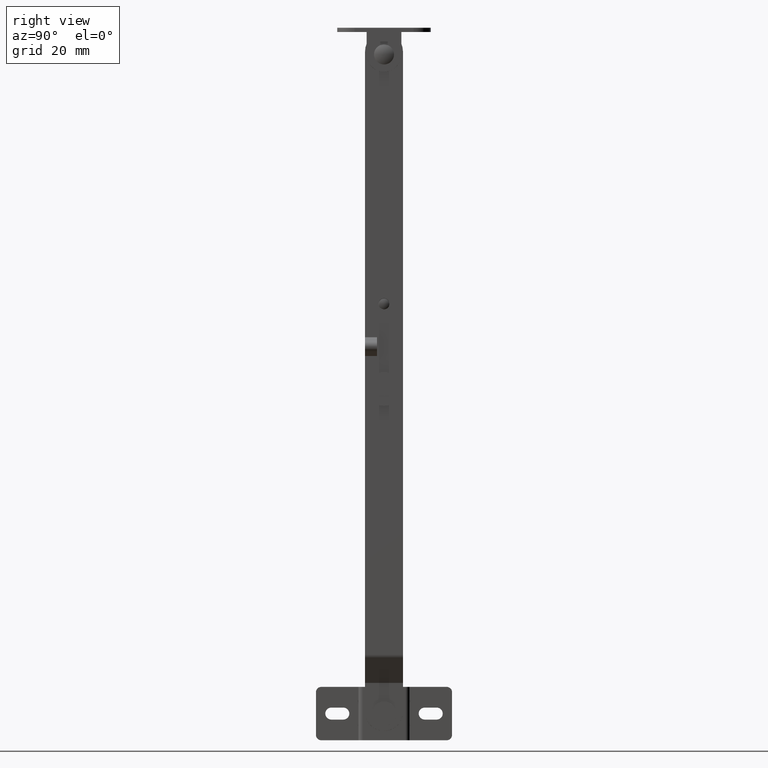
[diagram: clean part render]
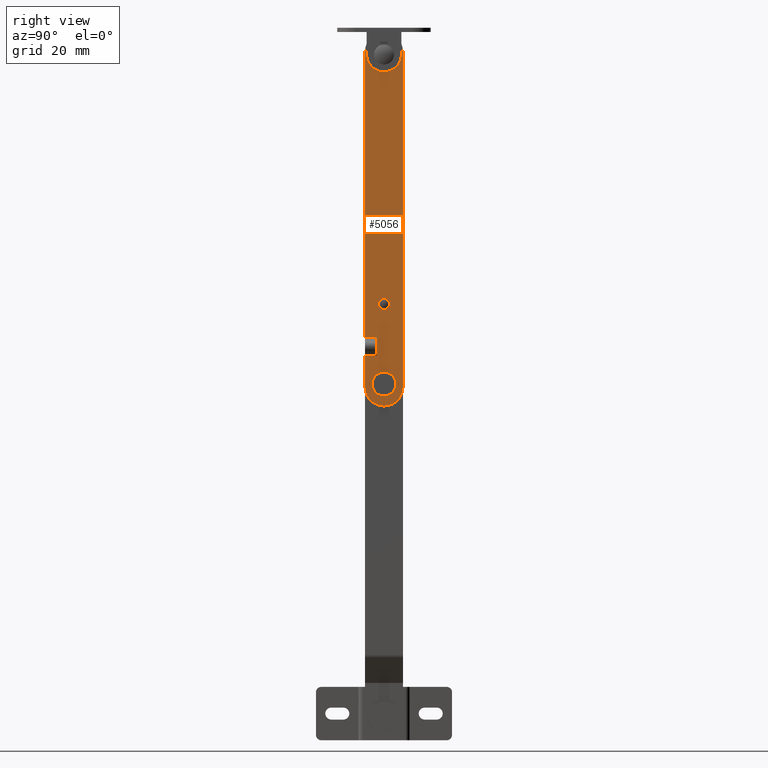
[diagram: same view with one face highlighted and labeled with its STEP entity id]
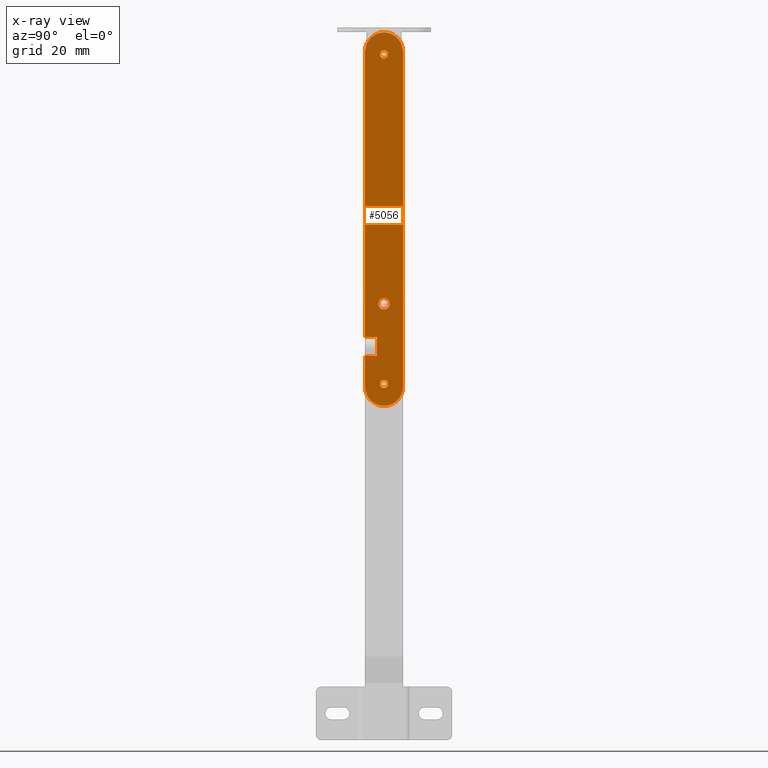
[diagram: x-ray of the same camera — body ghosted, the highlighted face saturated]
A machine part, right view. The second image highlights one B-rep face of the part: STEP entity #5056.
The next image is the same camera in x-ray: the body ghosted, the highlighted face saturated — about 0% of this face is hidden behind the body in this view.
In plain terms, the highlighted face is a freeform B-spline surface patch.
Its self-contained STEP definition (entity closure, byte-faithful):
#3879=CARTESIAN_POINT('',(20.300025000000051,2.353318E-011,32.099999999999987));
#3880=VERTEX_POINT('',#3879);
#3881=CARTESIAN_POINT('',(20.300024999891740,-1.504966217420980,31.464605454546032));
#3882=VERTEX_POINT('',#3881);
#3883=CARTESIAN_POINT('',(20.300025000000051,2.353318E-011,32.099999999999987));
#3884=CARTESIAN_POINT('',(20.300024999978731,-0.297165776085491,32.100402901504012));
#3885=CARTESIAN_POINT('',(20.300024999938330,-0.856104044079448,31.979180302453528));
#3886=CARTESIAN_POINT('',(20.300024999904942,-1.322236430678520,31.652658028357639));
#3887=CARTESIAN_POINT('',(20.300024999891740,-1.504966217420980,31.464605454546032));
#3888=B_SPLINE_CURVE_WITH_KNOTS('',3,(#3883,#3884,#3885,#3886,#3887),.UNSPECIFIED.,.F.,.U.,(4,1,4),(0.000000161100753,0.891350015161177,1.677919271041949),.UNSPECIFIED.);
#3889=EDGE_CURVE('',#3880,#3882,#3888,.T.);
#3944=CARTESIAN_POINT('',(20.300025000177811,-1.548283789449739,28.581259421821930));
#3945=VERTEX_POINT('',#3944);
#3951=CARTESIAN_POINT('',(20.300025000000051,2.353318E-011,27.899999999999999));
#3952=VERTEX_POINT('',#3951);
#3953=CARTESIAN_POINT('',(20.300025000177811,-1.548283789449739,28.581259421821930));
#3954=CARTESIAN_POINT('',(20.300025000153930,-1.340310937171123,28.353591132473088));
#3955=CARTESIAN_POINT('',(20.300025000097939,-0.852158668065824,28.014410925078781));
#3956=CARTESIAN_POINT('',(20.300025000031269,-0.272079412196803,27.899745769623401));
#3957=CARTESIAN_POINT('',(20.300025000000051,2.353318E-011,27.899999999999999));
#3958=B_SPLINE_CURVE_WITH_KNOTS('',3,(#3953,#3954,#3955,#3956,#3957),.UNSPECIFIED.,.F.,.U.,(4,1,4),(0.000000193664674,0.924864662773308,1.741015437898837),.UNSPECIFIED.);
#3959=EDGE_CURVE('',#3945,#3952,#3958,.T.);
#3961=CARTESIAN_POINT('',(20.300025000000051,2.100000000011224,30.000007190142139));
#3962=VERTEX_POINT('',#3961);
#3963=CARTESIAN_POINT('',(20.300025000000051,2.353318E-011,27.899999999999999));
#3964=CARTESIAN_POINT('',(20.300025000000051,0.360980295329783,27.899208125802410));
#3965=CARTESIAN_POINT('',(20.300025000000090,0.927011506659751,28.049731361668439));
#3966=CARTESIAN_POINT('',(20.300024999999980,1.474529916509753,28.477497433547558));
#3967=CARTESIAN_POINT('',(20.300025000000101,1.797811993652306,28.881350211766321));
#3968=CARTESIAN_POINT('',(20.300025000000101,2.033589204767956,29.364375681664828));
#3969=CARTESIAN_POINT('',(20.300025000000179,2.100124947771485,29.776646203667180));
#3970=CARTESIAN_POINT('',(20.300025000000051,2.100000000011224,30.000007190142139));
#3971=B_SPLINE_CURVE_WITH_KNOTS('',3,(#3963,#3964,#3965,#3966,#3967,#3968,#3969,#3970),.UNSPECIFIED.,.F.,.U.,(4,1,1,1,1,4),(0.000000659755424,1.082423134495415,1.700823224128252,2.061679648452581,2.628705970534092,3.298759115814546),.UNSPECIFIED.);
#3972=EDGE_CURVE('',#3952,#3962,#3971,.T.);
#3974=CARTESIAN_POINT('',(20.300025000000051,2.100000000011224,30.000007190142139));
#3975=CARTESIAN_POINT('',(20.300025000000009,2.100401341967307,30.292166228100381));
#3976=CARTESIAN_POINT('',(20.300025000000151,2.012530415936131,30.704159471263360));
#3977=CARTESIAN_POINT('',(20.300024999999959,1.713138740352597,31.248002677381201));
#3978=CARTESIAN_POINT('',(20.300025000000169,1.316744935064824,31.685733563740630));
#3979=CARTESIAN_POINT('',(20.300025000000030,0.704396946099515,32.022629308128707));
#3980=CARTESIAN_POINT('',(20.300025000000080,0.223348172160021,32.100091444917211));
#3981=CARTESIAN_POINT('',(20.300025000000051,2.353318E-011,32.099999999999987));
#3982=B_SPLINE_CURVE_WITH_KNOTS('',3,(#3974,#3975,#3976,#3977,#3978,#3979,#3980,#3981),.UNSPECIFIED.,.F.,.U.,(4,1,1,1,1,4),(0.000000669547682,0.876232426485192,1.237077105182174,1.855504484027237,2.628699516542808,3.298751010646302),.UNSPECIFIED.);
#3983=EDGE_CURVE('',#3962,#3880,#3982,.T.);
#4002=CARTESIAN_POINT('',(20.300025000000051,-2.099999999964158,29.999992809857861));
#4003=VERTEX_POINT('',#4002);
#4004=CARTESIAN_POINT('',(20.300024999891740,-1.504966217420980,31.464605454546032));
#4005=CARTESIAN_POINT('',(20.300024999909638,-1.741106230612482,31.223013256624331));
#4006=CARTESIAN_POINT('',(20.300024999945080,-2.021303202614474,30.742879627701331));
#4007=CARTESIAN_POINT('',(20.300024999985059,-2.100054966610337,30.202595145078590));
#4008=CARTESIAN_POINT('',(20.300025000000051,-2.099999999964158,29.999992809857861));
#4009=B_SPLINE_CURVE_WITH_KNOTS('',3,(#4004,#4005,#4006,#4007,#4008),.UNSPECIFIED.,.F.,.U.,(4,1,4),(0.000000135716862,1.013009554103204,1.620841645003449),.UNSPECIFIED.);
#4010=EDGE_CURVE('',#3882,#4003,#4009,.T.);
#4012=CARTESIAN_POINT('',(20.300025000000051,-2.099999999964158,29.999992809857861));
#4013=CARTESIAN_POINT('',(20.300025000036669,-2.100401378569969,29.707843577971389));
#4014=CARTESIAN_POINT('',(20.300025000101641,-1.989744052569221,29.189020027666491));
#4015=CARTESIAN_POINT('',(20.300025000156850,-1.701866597917696,28.748655293717931));
#4016=CARTESIAN_POINT('',(20.300025000177811,-1.548283789449739,28.581259421821930));
#4017=B_SPLINE_CURVE_WITH_KNOTS('',3,(#4012,#4013,#4014,#4015,#4016),.UNSPECIFIED.,.F.,.U.,(4,1,4),(0.000000134614043,0.876283968312938,1.557839108126244),.UNSPECIFIED.);
#4018=EDGE_CURVE('',#4003,#3945,#4017,.T.);
#4069=CARTESIAN_POINT('',(20.300025000001579,-0.968612595259130,124.645333888293610));
#4070=VERTEX_POINT('',#4069);
#4071=CARTESIAN_POINT('',(20.300025000000051,-1.499999999999798,123.500000101906710));
#4072=VERTEX_POINT('',#4071);
#4073=CARTESIAN_POINT('',(20.300025000001579,-0.968612595259130,124.645333888293610));
#4074=CARTESIAN_POINT('',(20.300025000001369,-1.155619863982478,124.487877479565700));
#4075=CARTESIAN_POINT('',(20.300025000000900,-1.416298998290240,124.124342677004610));
#4076=CARTESIAN_POINT('',(20.300025000000300,-1.500174590470585,123.690074568550000));
#4077=CARTESIAN_POINT('',(20.300025000000051,-1.499999999999798,123.500000101906710));
#4078=B_SPLINE_CURVE_WITH_KNOTS('',3,(#4073,#4074,#4075,#4076,#4077),.UNSPECIFIED.,.F.,.U.,(4,1,4),(0.000000213400212,0.733140783626724,1.303362873469221),.UNSPECIFIED.);
#4079=EDGE_CURVE('',#4070,#4072,#4078,.T.);
#4081=CARTESIAN_POINT('',(20.300025000000051,1.989520E-013,122.0));
#4082=VERTEX_POINT('',#4081);
#4083=CARTESIAN_POINT('',(20.300025000000051,-1.499999999999798,123.500000101906710));
#4084=CARTESIAN_POINT('',(20.300025000000058,-1.500194932848977,123.303624767401100));
#4085=CARTESIAN_POINT('',(20.300025000000041,-1.421811718707333,122.911051439891690));
#4086=CARTESIAN_POINT('',(20.300025000000069,-1.116108611040016,122.453367514733900));
#4087=CARTESIAN_POINT('',(20.300025000000058,-0.637644476773810,122.098671855124910));
#4088=CARTESIAN_POINT('',(20.300025000000009,-0.245579988326851,121.999488367523200));
#4089=CARTESIAN_POINT('',(20.300025000000051,1.989520E-013,122.0));
#4090=B_SPLINE_CURVE_WITH_KNOTS('',3,(#4083,#4084,#4085,#4086,#4087,#4088,#4089),.UNSPECIFIED.,.F.,.U.,(4,1,1,1,4),(0.000000459267700,0.589113397398850,1.178215958646211,1.620021368977781,2.356430882423099),.UNSPECIFIED.);
#4091=EDGE_CURVE('',#4072,#4082,#4090,.T.);
#4093=CARTESIAN_POINT('',(20.300025000000041,1.500000000000196,123.499999898093290));
#4094=VERTEX_POINT('',#4093);
#4095=CARTESIAN_POINT('',(20.300025000000051,1.989520E-013,122.0));
#4096=CARTESIAN_POINT('',(20.300025000000069,0.294825149938416,121.998914430663210));
#4097=CARTESIAN_POINT('',(20.300025000000051,0.784253534821856,122.149444950840010));
#4098=CARTESIAN_POINT('',(20.300025000000041,1.350600557010094,122.715664224123200));
#4099=CARTESIAN_POINT('',(20.300025000000069,1.501061369419570,123.205203205356800));
#4100=CARTESIAN_POINT('',(20.300025000000041,1.500000000000196,123.499999898093290));
#4101=B_SPLINE_CURVE_WITH_KNOTS('',3,(#4095,#4096,#4097,#4098,#4099,#4100),.UNSPECIFIED.,.F.,.U.,(4,1,1,4),(0.000000459809881,0.883685154666188,1.472732995613560,2.356430767539218),.UNSPECIFIED.);
#4102=EDGE_CURVE('',#4082,#4094,#4101,.T.);
#4104=CARTESIAN_POINT('',(20.300024999997600,1.088061623587512,124.532531755904500));
#4105=VERTEX_POINT('',#4104);
#4106=CARTESIAN_POINT('',(20.300025000000041,1.500000000000196,123.499999898093290));
#4107=CARTESIAN_POINT('',(20.300024999999650,1.500095944010185,123.666090243991500));
#4108=CARTESIAN_POINT('',(20.300024999998769,1.436293681901936,124.045645885164010));
#4109=CARTESIAN_POINT('',(20.300024999997969,1.235309787542793,124.377817714070600));
#4110=CARTESIAN_POINT('',(20.300024999997600,1.088061623587512,124.532531755904500));
#4111=B_SPLINE_CURVE_WITH_KNOTS('',3,(#4106,#4107,#4108,#4109,#4110),.UNSPECIFIED.,.F.,.U.,(4,1,4),(0.000000215310086,0.498302147059430,1.138934044232477),.UNSPECIFIED.);
#4112=EDGE_CURVE('',#4094,#4105,#4111,.T.);
#4187=CARTESIAN_POINT('',(20.300025000000051,1.989520E-013,125.0));
#4188=VERTEX_POINT('',#4187);
#4189=CARTESIAN_POINT('',(20.300025000000051,1.989520E-013,125.0));
#4190=CARTESIAN_POINT('',(20.300025000000389,-0.197470931868431,125.000229559435890));
#4191=CARTESIAN_POINT('',(20.300025000000890,-0.548263086193038,124.929604088159710));
#4192=CARTESIAN_POINT('',(20.300025000001430,-0.851395530386844,124.744555414938400));
#4193=CARTESIAN_POINT('',(20.300025000001579,-0.968612595259130,124.645333888293610));
#4194=B_SPLINE_CURVE_WITH_KNOTS('',3,(#4189,#4190,#4191,#4192,#4193),.UNSPECIFIED.,.F.,.U.,(4,1,4),(0.000000145797894,0.592340636997126,1.053075827046502),.UNSPECIFIED.);
#4195=EDGE_CURVE('',#4188,#4070,#4194,.T.);
#4217=CARTESIAN_POINT('',(20.300024999997600,1.088061623587512,124.532531755904500));
#4218=CARTESIAN_POINT('',(20.300024999997969,0.931174658136821,124.698454041851210));
#4219=CARTESIAN_POINT('',(20.300024999998730,0.583252184780846,124.927066035372210));
#4220=CARTESIAN_POINT('',(20.300024999999671,0.177542002786666,125.000148880657310));
#4221=CARTESIAN_POINT('',(20.300025000000051,1.989520E-013,125.0));
#4222=B_SPLINE_CURVE_WITH_KNOTS('',3,(#4217,#4218,#4219,#4220,#4221),.UNSPECIFIED.,.F.,.U.,(4,1,4),(0.000000151179236,0.684841824422047,1.217497630735890),.UNSPECIFIED.);
#4223=EDGE_CURVE('',#4105,#4188,#4222,.T.);
#4254=CARTESIAN_POINT('',(20.300025000001579,-0.968612595259323,1.145333888293611));
#4255=VERTEX_POINT('',#4254);
#4256=CARTESIAN_POINT('',(20.300025000000051,-1.499999999999996,0.000000101906706));
#4257=VERTEX_POINT('',#4256);
#4258=CARTESIAN_POINT('',(20.300025000001579,-0.968612595259323,1.145333888293611));
#4259=CARTESIAN_POINT('',(20.300025000001419,-1.155619186744013,0.987872335821311));
#4260=CARTESIAN_POINT('',(20.300025000000801,-1.416297904928388,0.624354526667600));
#4261=CARTESIAN_POINT('',(20.300025000000328,-1.500176554875174,0.190059439017149));
#4262=CARTESIAN_POINT('',(20.300025000000051,-1.499999999999996,0.000000101906706));
#4263=B_SPLINE_CURVE_WITH_KNOTS('',3,(#4258,#4259,#4260,#4261,#4262),.UNSPECIFIED.,.F.,.U.,(4,1,4),(0.000000213400092,0.733140783626709,1.303362873469229),.UNSPECIFIED.);
#4264=EDGE_CURVE('',#4255,#4257,#4263,.T.);
#4266=CARTESIAN_POINT('',(20.300025000000051,0.0,-1.500000000000000));
#4267=VERTEX_POINT('',#4266);
#4268=CARTESIAN_POINT('',(20.300025000000051,-1.499999999999996,0.000000101906706));
#4269=CARTESIAN_POINT('',(20.300025000000058,-1.500193681952642,-0.196370306115095));
#4270=CARTESIAN_POINT('',(20.300025000000041,-1.421818045431627,-0.588958735193704));
#4271=CARTESIAN_POINT('',(20.300025000000069,-1.116096299352198,-1.046615496695454));
#4272=CARTESIAN_POINT('',(20.300025000000030,-0.637660035953433,-1.401349041089954));
#4273=CARTESIAN_POINT('',(20.300025000000069,-0.245572768901350,-1.500501991924916));
#4274=CARTESIAN_POINT('',(20.300025000000051,0.0,-1.500000000000000));
#4275=B_SPLINE_CURVE_WITH_KNOTS('',3,(#4268,#4269,#4270,#4271,#4272,#4273,#4274),.UNSPECIFIED.,.F.,.U.,(4,1,1,1,4),(0.000000459268588,0.589113397398972,1.178215958646171,1.620021368977727,2.356430882423040),.UNSPECIFIED.);
#4276=EDGE_CURVE('',#4257,#4267,#4275,.T.);
#4278=CARTESIAN_POINT('',(20.300025000000051,1.499999999999997,-0.000000101906711));
#4279=VERTEX_POINT('',#4278);
#4280=CARTESIAN_POINT('',(20.300025000000051,0.0,-1.500000000000000));
#4281=CARTESIAN_POINT('',(20.300025000000030,0.196384793522591,-1.500198055552826));
#4282=CARTESIAN_POINT('',(20.300025000000058,0.588896916659341,-1.421792867655248));
#4283=CARTESIAN_POINT('',(20.300025000000058,1.088403148893003,-1.088372299118266));
#4284=CARTESIAN_POINT('',(20.300025000000041,1.421784846237707,-0.588927974838621));
#4285=CARTESIAN_POINT('',(20.300025000000051,1.500199243014646,-0.196375145936481));
#4286=CARTESIAN_POINT('',(20.300025000000051,1.499999999999997,-0.000000101906711));
#4287=B_SPLINE_CURVE_WITH_KNOTS('',3,(#4280,#4281,#4282,#4283,#4284,#4285,#4286),.UNSPECIFIED.,.F.,.U.,(4,1,1,1,4),(0.000000459807827,0.589113369118813,1.178215900984567,1.767323334941643,2.356430767539226),.UNSPECIFIED.);
#4288=EDGE_CURVE('',#4267,#4279,#4287,.T.);
#4290=CARTESIAN_POINT('',(20.300024999997600,1.088061623587313,1.032531755904503));
#4291=VERTEX_POINT('',#4290);
#4292=CARTESIAN_POINT('',(20.300025000000051,1.499999999999997,-0.000000101906711));
#4293=CARTESIAN_POINT('',(20.300024999999660,1.500094165247337,0.166094085797057));
#4294=CARTESIAN_POINT('',(20.300024999998762,1.436298356698015,0.545643076603334));
#4295=CARTESIAN_POINT('',(20.300024999997959,1.235307801713205,0.877814288798541));
#4296=CARTESIAN_POINT('',(20.300024999997600,1.088061623587313,1.032531755904503));
#4297=B_SPLINE_CURVE_WITH_KNOTS('',3,(#4292,#4293,#4294,#4295,#4296),.UNSPECIFIED.,.F.,.U.,(4,1,4),(0.000000215310006,0.498302147059401,1.138934044232451),.UNSPECIFIED.);
#4298=EDGE_CURVE('',#4279,#4291,#4297,.T.);
#4374=CARTESIAN_POINT('',(20.300025000000051,0.0,1.500000000000000));
#4375=VERTEX_POINT('',#4374);
#4376=CARTESIAN_POINT('',(20.300025000000051,0.0,1.500000000000000));
#4377=CARTESIAN_POINT('',(20.300025000000279,-0.153568778422692,1.500069004953319));
#4378=CARTESIAN_POINT('',(20.300025000000868,-0.504532942490185,1.445621681896143));
#4379=CARTESIAN_POINT('',(20.300025000001341,-0.817976236721030,1.273021549307543));
#4380=CARTESIAN_POINT('',(20.300025000001579,-0.968612595259323,1.145333888293611));
#4381=B_SPLINE_CURVE_WITH_KNOTS('',3,(#4376,#4377,#4378,#4379,#4380),.UNSPECIFIED.,.F.,.U.,(4,1,4),(0.000000145798017,0.460735335844652,1.053075827046486),.UNSPECIFIED.);
#4382=EDGE_CURVE('',#4375,#4255,#4381,.T.);
#4404=CARTESIAN_POINT('',(20.300024999997600,1.088061623587313,1.032531755904503));
#4405=CARTESIAN_POINT('',(20.300024999997930,0.965958435626933,1.161418850432693));
#4406=CARTESIAN_POINT('',(20.300024999998541,0.633670770620571,1.405403360239426));
#4407=CARTESIAN_POINT('',(20.300024999999589,0.228351347099335,1.500409716599055));
#4408=CARTESIAN_POINT('',(20.300025000000051,0.0,1.500000000000000));
#4409=B_SPLINE_CURVE_WITH_KNOTS('',3,(#4404,#4405,#4406,#4407,#4408),.UNSPECIFIED.,.F.,.U.,(4,1,4),(0.000000151178586,0.532655957485929,1.217497630735908),.UNSPECIFIED.);
#4410=EDGE_CURVE('',#4291,#4375,#4409,.T.);
#4477=CARTESIAN_POINT('',(20.300006499990570,-7.100000000000001,10.500000000000000));
#4478=VERTEX_POINT('',#4477);
#4484=CARTESIAN_POINT('',(20.300012666660368,-2.599999999999910,10.500009835268621));
#4485=VERTEX_POINT('',#4484);
#4486=CARTESIAN_POINT('',(20.300012666660368,-2.599999999999910,10.500009835268621));
#4487=CARTESIAN_POINT('',(20.300006499990570,-7.100000000000001,10.500000000000000));
#4488=QUASI_UNIFORM_CURVE('',1,(#4486,#4487),.UNSPECIFIED.,.F.,.U.);
#4489=EDGE_CURVE('',#4485,#4478,#4488,.T.);
#4596=CARTESIAN_POINT('',(20.300025000000002,-2.599999999999910,12.991832183000460));
#4597=VERTEX_POINT('',#4596);
#4631=CARTESIAN_POINT('',(20.300025000000051,-2.599999999999910,15.008167816963001));
#4632=VERTEX_POINT('',#4631);
#4721=CARTESIAN_POINT('',(20.300006500032829,-7.100000000000001,17.500000000000000));
#4722=VERTEX_POINT('',#4721);
#4729=CARTESIAN_POINT('',(20.300012666674451,-2.599999999999910,17.499990164753779));
#4730=VERTEX_POINT('',#4729);
#4736=CARTESIAN_POINT('',(20.300006500032829,-7.100000000000001,17.500000000000000));
#4737=CARTESIAN_POINT('',(20.300012666674451,-2.599999999999910,17.499990164753779));
#4738=QUASI_UNIFORM_CURVE('',1,(#4736,#4737),.UNSPECIFIED.,.F.,.U.);
#4739=EDGE_CURVE('',#4722,#4730,#4738,.T.);
#4750=CARTESIAN_POINT('',(20.300025000000002,-2.599999999999910,12.991832183000460));
#4751=CARTESIAN_POINT('',(20.300012666660368,-2.599999999999910,10.500009835268621));
#4752=QUASI_UNIFORM_CURVE('',1,(#4750,#4751),.UNSPECIFIED.,.F.,.U.);
#4753=EDGE_CURVE('',#4597,#4485,#4752,.T.);
#4757=CARTESIAN_POINT('',(20.300012666674451,-2.599999999999910,17.499990164753779));
#4758=CARTESIAN_POINT('',(20.300025000000051,-2.599999999999910,15.008167816963001));
#4759=QUASI_UNIFORM_CURVE('',1,(#4757,#4758),.UNSPECIFIED.,.F.,.U.);
#4760=EDGE_CURVE('',#4730,#4632,#4759,.T.);
#4785=CARTESIAN_POINT('',(20.300025000000051,-0.000000035110812,-8.250000000000036));
#4786=VERTEX_POINT('',#4785);
#4787=CARTESIAN_POINT('',(20.300025000000051,7.100000000000140,-1.149999999999854));
#4788=VERTEX_POINT('',#4787);
#4789=CARTESIAN_POINT('',(20.300025000000051,-0.000000035110812,-8.250000000000036));
#4790=CARTESIAN_POINT('',(20.300025000000090,0.755178191925814,-8.250394007822033));
#4791=CARTESIAN_POINT('',(20.300024999999980,1.974714039932132,-8.053505629399242));
#4792=CARTESIAN_POINT('',(20.300025000000119,3.522104547147323,-7.367379381657295));
#4793=CARTESIAN_POINT('',(20.300025000000041,4.906270439444725,-6.393060742844948));
#4794=CARTESIAN_POINT('',(20.300024999999959,6.156268071842603,-4.907627368641722));
#4795=CARTESIAN_POINT('',(20.300025000000300,6.942459500764775,-3.008772845947803));
#4796=CARTESIAN_POINT('',(20.300024999999859,7.100097400241109,-1.730855009133772));
#4797=CARTESIAN_POINT('',(20.300025000000051,7.100000000000140,-1.149999999999854));
#4798=B_SPLINE_CURVE_WITH_KNOTS('',3,(#4789,#4790,#4791,#4792,#4793,#4794,#4795,#4796,#4797),.UNSPECIFIED.,.F.,.U.,(4,1,1,1,1,1,4),(0.000000104890967,2.265418676070031,3.659585634879675,5.053684792876231,7.319079476249268,9.410321278298596,11.152933804565841),.UNSPECIFIED.);
#4799=EDGE_CURVE('',#4786,#4788,#4798,.T.);
#4801=CARTESIAN_POINT('',(20.300025000000051,-7.100000000000111,-1.150000000000020));
#4802=VERTEX_POINT('',#4801);
#4803=CARTESIAN_POINT('',(20.300025000000051,-7.100000000000111,-1.150000000000020));
#4804=CARTESIAN_POINT('',(20.300025000000051,-7.100044318357809,-1.672757676600941));
#4805=CARTESIAN_POINT('',(20.300025000000051,-6.964869881806160,-2.892632121457217));
#4806=CARTESIAN_POINT('',(20.300025000000041,-6.246626040753182,-4.755402327310412));
#4807=CARTESIAN_POINT('',(20.300025000000090,-5.033466118376373,-6.271080186476533));
#4808=CARTESIAN_POINT('',(20.300024999999941,-3.673630274986036,-7.279071073444936));
#4809=CARTESIAN_POINT('',(20.300025000000382,-2.090770320346421,-8.027892525782159));
#4810=CARTESIAN_POINT('',(20.300024999999589,-0.813315328242196,-8.250629093983275));
#4811=CARTESIAN_POINT('',(20.300025000000051,-0.000000035110812,-8.250000000000036));
#4812=B_SPLINE_CURVE_WITH_KNOTS('',3,(#4803,#4804,#4805,#4806,#4807,#4808,#4809,#4810,#4811),.UNSPECIFIED.,.F.,.U.,(4,1,1,1,1,1,4),(0.000000104937286,1.568342166459358,3.659585621935396,5.924987654864612,7.319079450290418,8.713244082205566,11.152933764986710),.UNSPECIFIED.);
#4813=EDGE_CURVE('',#4802,#4786,#4812,.T.);
#4906=CARTESIAN_POINT('',(20.300025000000051,-7.099999999999810,124.650000000000010));
#4907=VERTEX_POINT('',#4906);
#4913=CARTESIAN_POINT('',(20.300025000000051,-0.000004087301113,131.749999999998810));
#4914=VERTEX_POINT('',#4913);
#4915=CARTESIAN_POINT('',(20.300025000000051,-0.000004087301113,131.749999999998810));
#4916=CARTESIAN_POINT('',(20.300025000000041,-0.755174109487647,131.750371000542910));
#4917=CARTESIAN_POINT('',(20.300025000000080,-1.974724878291849,131.553517573471110));
#4918=CARTESIAN_POINT('',(20.300025000000030,-3.522086541552391,130.867378952572410));
#4919=CARTESIAN_POINT('',(20.300025000000041,-4.906357202472101,129.893061694621710));
#4920=CARTESIAN_POINT('',(20.300025000000101,-6.004526775400755,128.587658043480700));
#4921=CARTESIAN_POINT('',(20.300024999999980,-6.877902241856367,126.740754680815500));
#4922=CARTESIAN_POINT('',(20.300025000000151,-7.100586795340460,125.463308104814600));
#4923=CARTESIAN_POINT('',(20.300025000000051,-7.099999999999810,124.650000000000010));
#4924=B_SPLINE_CURVE_WITH_KNOTS('',3,(#4915,#4916,#4917,#4918,#4919,#4920,#4921,#4922,#4923),.UNSPECIFIED.,.F.,.U.,(4,1,1,1,1,1,4),(0.000000107719801,2.265418206503197,3.659584875053810,5.053683744741147,7.319077952355737,8.713242297294022,11.152931481047551),.UNSPECIFIED.);
#4925=EDGE_CURVE('',#4914,#4907,#4924,.T.);
#4927=CARTESIAN_POINT('',(20.300025000000051,7.100000000000210,124.650000000000010));
#4928=VERTEX_POINT('',#4927);
#4929=CARTESIAN_POINT('',(20.300025000000051,7.100000000000210,124.650000000000010));
#4930=CARTESIAN_POINT('',(20.300025000000058,7.100211912208819,125.288976252718400));
#4931=CARTESIAN_POINT('',(20.300025000000009,6.965750716857548,126.276307807039000));
#4932=CARTESIAN_POINT('',(20.300025000000090,6.475145361130061,127.647309950107800));
#4933=CARTESIAN_POINT('',(20.300025000000058,5.756106338880689,128.917064923515510));
#4934=CARTESIAN_POINT('',(20.300024999999980,4.599136825521499,130.162503639941890));
#4935=CARTESIAN_POINT('',(20.300025000000112,3.165155422520283,131.070442901122500));
#4936=CARTESIAN_POINT('',(20.300025000000030,1.626365028222039,131.620961289944010));
#4937=CARTESIAN_POINT('',(20.300024999999941,0.580857904429377,131.750132198223610));
#4938=CARTESIAN_POINT('',(20.300025000000051,-0.000004087301113,131.749999999998810));
#4939=B_SPLINE_CURVE_WITH_KNOTS('',3,(#4929,#4930,#4931,#4932,#4933,#4934,#4935,#4936,#4937,#4938),.UNSPECIFIED.,.F.,.U.,(4,1,1,1,1,1,1,4),(0.000000102121442,1.916878576094232,2.962506500078543,4.356645084570499,6.273507094692726,8.016158283591032,9.410323204993459,11.152936088503440),.UNSPECIFIED.);
#4940=EDGE_CURVE('',#4928,#4914,#4939,.T.);
#4962=CARTESIAN_POINT('',(20.300025000000051,7.100000000000140,-1.149999999999854));
#4963=CARTESIAN_POINT('',(20.300025000000051,7.100000000000210,124.650000000000010));
#4964=QUASI_UNIFORM_CURVE('',1,(#4962,#4963),.UNSPECIFIED.,.F.,.U.);
#4965=EDGE_CURVE('',#4788,#4928,#4964,.T.);
#4992=CARTESIAN_POINT('',(20.300006499990570,-7.100000000000001,10.500000000000000));
#4993=CARTESIAN_POINT('',(20.300025000000051,-7.100000000000111,-1.150000000000020));
#4994=QUASI_UNIFORM_CURVE('',1,(#4992,#4993),.UNSPECIFIED.,.F.,.U.);
#4995=EDGE_CURVE('',#4478,#4802,#4994,.T.);
#5000=CARTESIAN_POINT('',(20.300025000000051,-7.099999999999810,124.650000000000010));
#5001=CARTESIAN_POINT('',(20.300006500032829,-7.100000000000001,17.500000000000000));
#5002=QUASI_UNIFORM_CURVE('',1,(#5000,#5001),.UNSPECIFIED.,.F.,.U.);
#5003=EDGE_CURVE('',#4907,#4722,#5002,.T.);
#5009=CARTESIAN_POINT('',(20.300025000000002,-7.809289972477772,138.742999728651600));
#5010=CARTESIAN_POINT('',(20.300025000000002,7.809290353351551,138.742999728651600));
#5011=CARTESIAN_POINT('',(20.300025000000002,-7.809289972477772,-15.243003483745451));
#5012=CARTESIAN_POINT('',(20.300025000000002,7.809290353351551,-15.243003483745451));
#5013=B_SPLINE_SURFACE_WITH_KNOTS('',1,1,((#5009,#5011),(#5010,#5012)),.UNSPECIFIED.,.F.,.F.,.U.,(2,2),(2,2),(0.0,15.618580325829321),(0.0,153.986003212397090),.UNSPECIFIED.);
#5014=ORIENTED_EDGE('',*,*,#4489,.T.);
#5015=ORIENTED_EDGE('',*,*,#4995,.T.);
#5016=ORIENTED_EDGE('',*,*,#4813,.T.);
#5017=ORIENTED_EDGE('',*,*,#4799,.T.);
#5018=ORIENTED_EDGE('',*,*,#4965,.T.);
#5019=ORIENTED_EDGE('',*,*,#4940,.T.);
#5020=ORIENTED_EDGE('',*,*,#4925,.T.);
#5021=ORIENTED_EDGE('',*,*,#5003,.T.);
#5022=ORIENTED_EDGE('',*,*,#4739,.T.);
#5023=ORIENTED_EDGE('',*,*,#4760,.T.);
#5024=CARTESIAN_POINT('',(20.300025000000051,-2.599999999999910,15.008167816963001));
#5025=CARTESIAN_POINT('',(20.300025000000002,-2.599999999999910,12.991832183000460));
#5026=QUASI_UNIFORM_CURVE('',1,(#5024,#5025),.UNSPECIFIED.,.F.,.U.);
#5027=EDGE_CURVE('',#4632,#4597,#5026,.T.);
#5028=ORIENTED_EDGE('',*,*,#5027,.T.);
#5029=ORIENTED_EDGE('',*,*,#4753,.T.);
#5030=EDGE_LOOP('',(#5014,#5015,#5016,#5017,#5018,#5019,#5020,#5021,#5022,#5023,#5028,#5029));
#5031=FACE_OUTER_BOUND('',#5030,.T.);
#5032=ORIENTED_EDGE('',*,*,#4091,.F.);
#5033=ORIENTED_EDGE('',*,*,#4079,.F.);
#5034=ORIENTED_EDGE('',*,*,#4195,.F.);
#5035=ORIENTED_EDGE('',*,*,#4223,.F.);
#5036=ORIENTED_EDGE('',*,*,#4112,.F.);
#5037=ORIENTED_EDGE('',*,*,#4102,.F.);
#5038=EDGE_LOOP('',(#5032,#5033,#5034,#5035,#5036,#5037));
#5039=FACE_BOUND('',#5038,.T.);
#5040=ORIENTED_EDGE('',*,*,#4276,.F.);
#5041=ORIENTED_EDGE('',*,*,#4264,.F.);
#5042=ORIENTED_EDGE('',*,*,#4382,.F.);
#5043=ORIENTED_EDGE('',*,*,#4410,.F.);
#5044=ORIENTED_EDGE('',*,*,#4298,.F.);
#5045=ORIENTED_EDGE('',*,*,#4288,.F.);
#5046=EDGE_LOOP('',(#5040,#5041,#5042,#5043,#5044,#5045));
#5047=FACE_BOUND('',#5046,.T.);
#5048=ORIENTED_EDGE('',*,*,#3972,.F.);
#5049=ORIENTED_EDGE('',*,*,#3959,.F.);
#5050=ORIENTED_EDGE('',*,*,#4018,.F.);
#5051=ORIENTED_EDGE('',*,*,#4010,.F.);
#5052=ORIENTED_EDGE('',*,*,#3889,.F.);
#5053=ORIENTED_EDGE('',*,*,#3983,.F.);
#5054=EDGE_LOOP('',(#5048,#5049,#5050,#5051,#5052,#5053));
#5055=FACE_BOUND('',#5054,.T.);
#5056=ADVANCED_FACE('',(#5031,#5039,#5047,#5055),#5013,.F.);